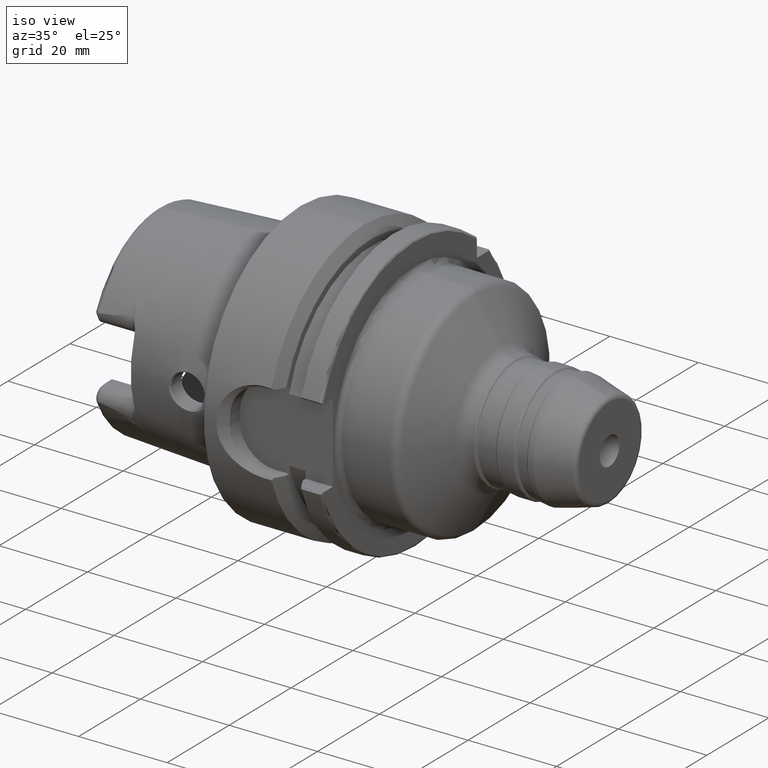
[diagram: clean part render]
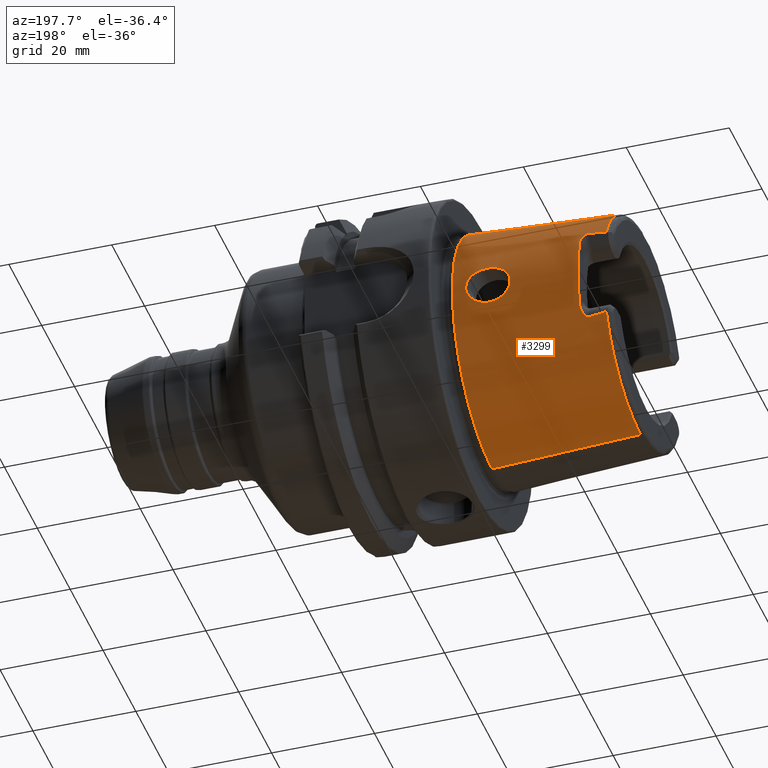
[diagram: tour spotlight — one face highlighted and labeled with its STEP entity id]
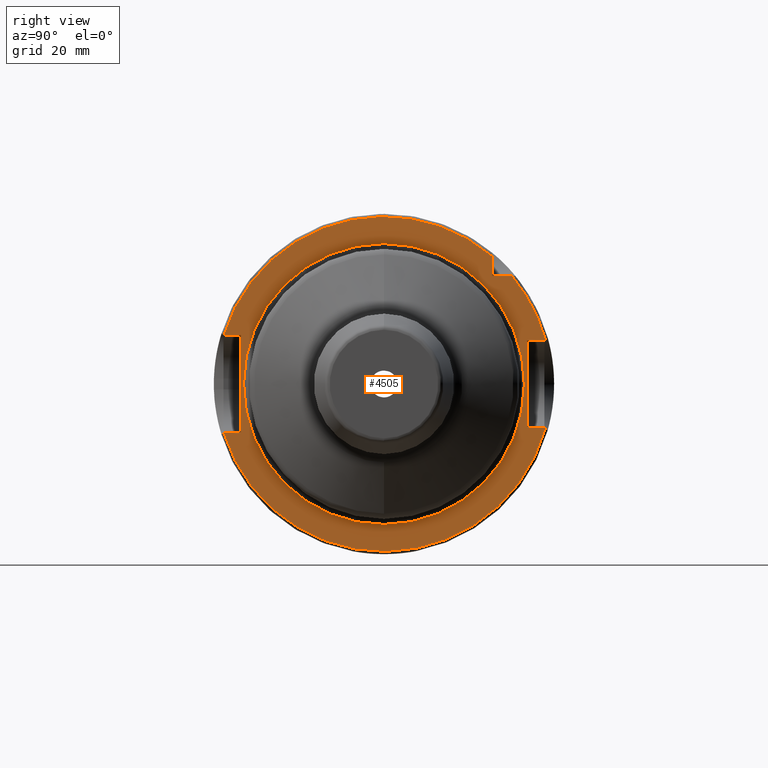
[diagram: tour spotlight — one face highlighted and labeled with its STEP entity id]
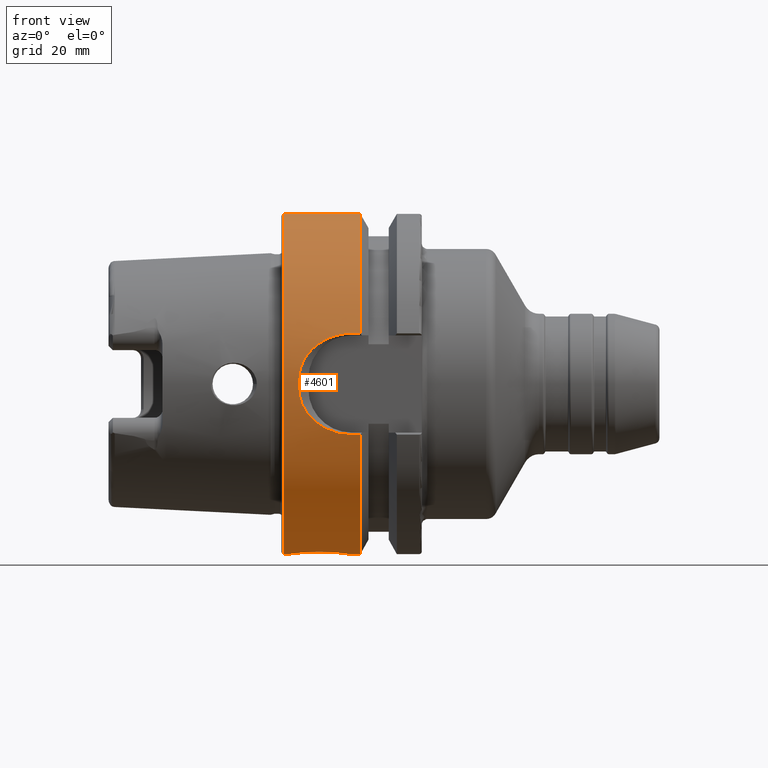
[diagram: tour spotlight — one face highlighted and labeled with its STEP entity id]
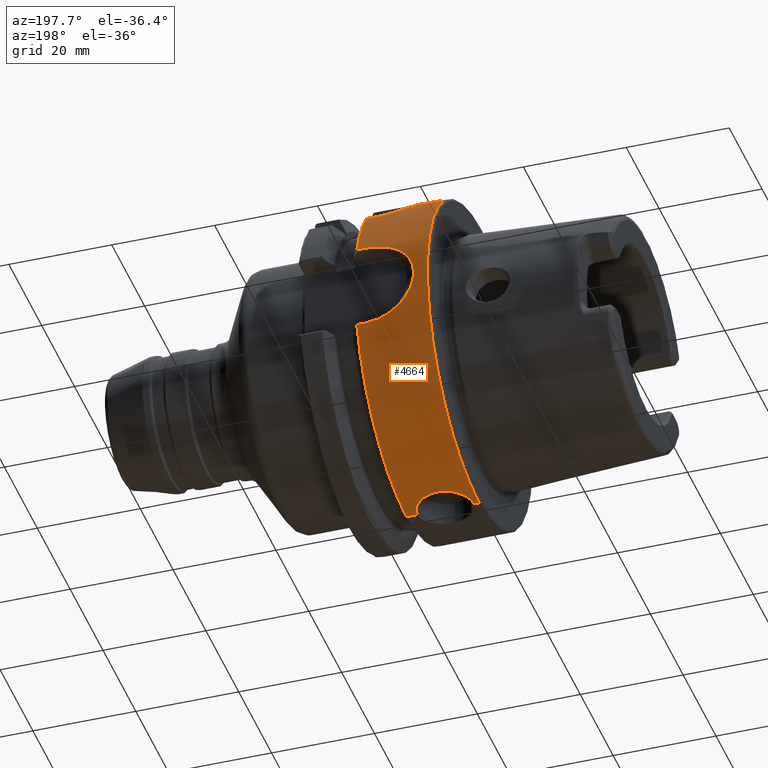
[diagram: tour spotlight — one face highlighted and labeled with its STEP entity id]
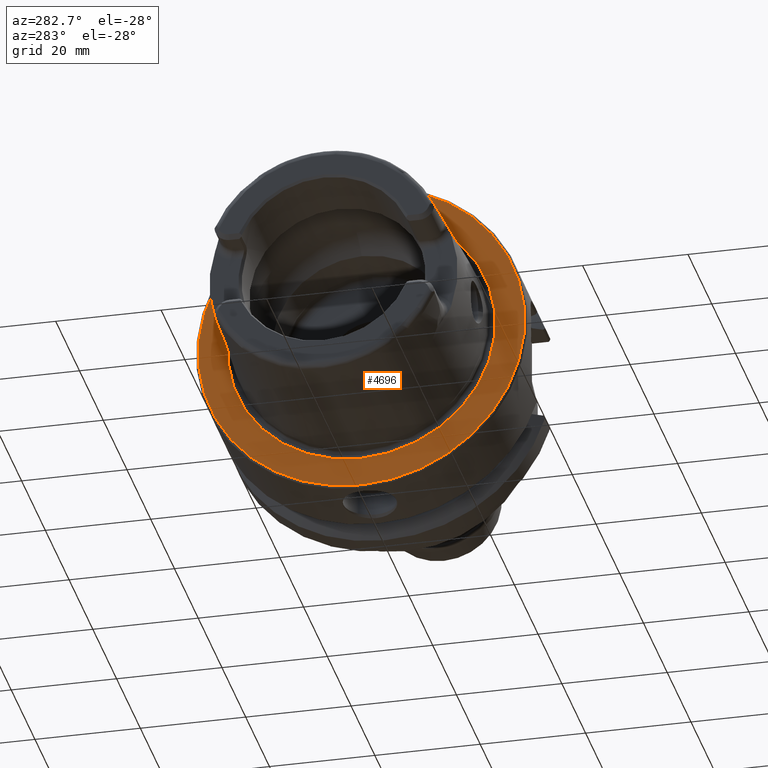
[diagram: tour spotlight — one face highlighted and labeled with its STEP entity id]
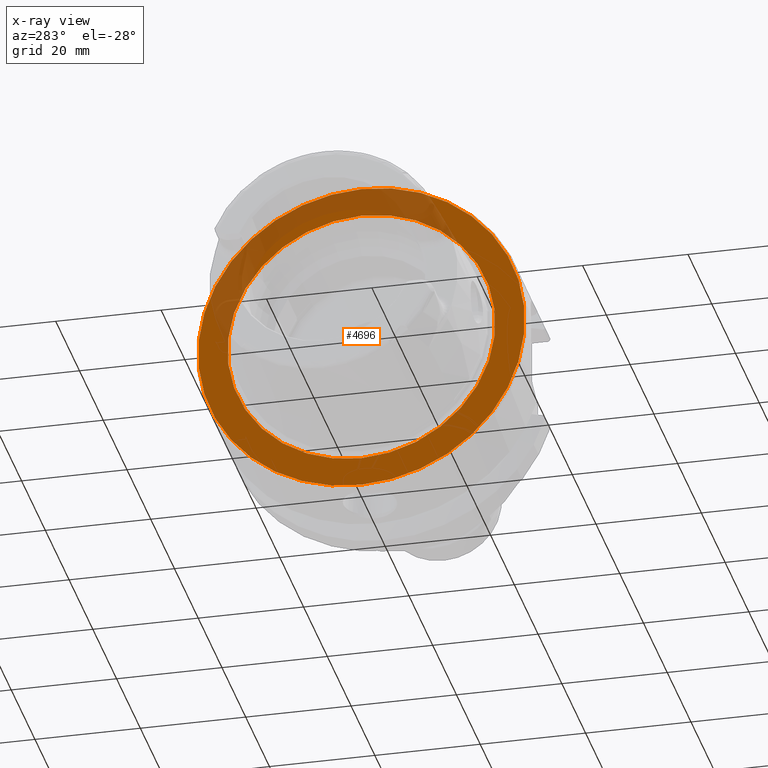
[diagram: x-ray of the same camera — body ghosted, this tour face saturated]
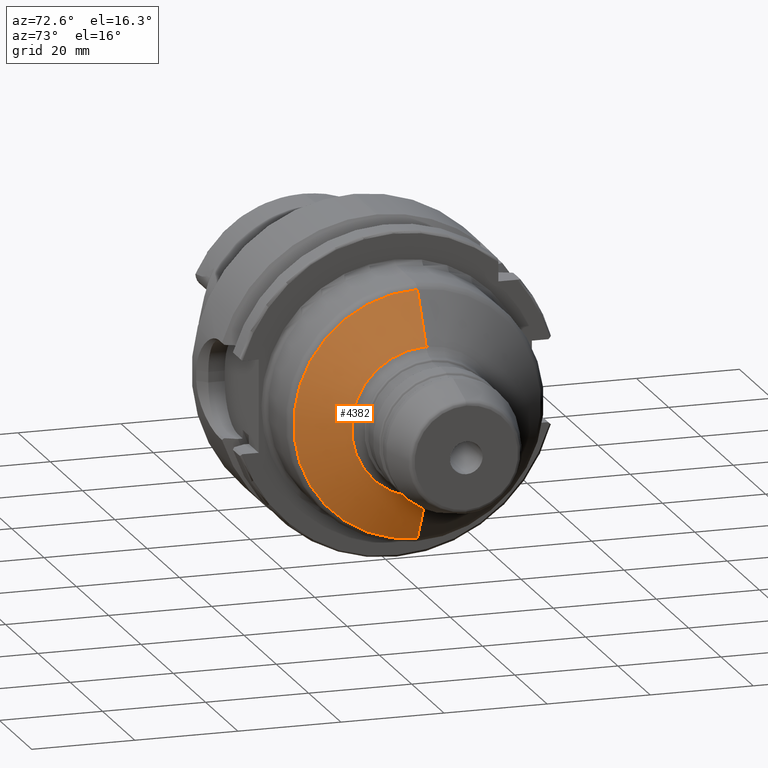
[diagram: tour spotlight — one face highlighted and labeled with its STEP entity id]
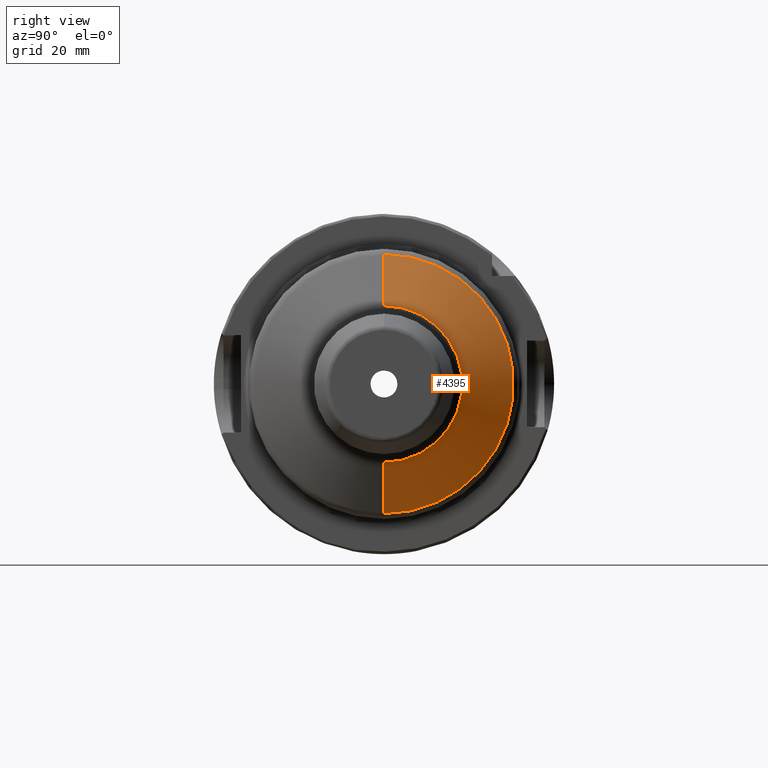
[diagram: tour spotlight — one face highlighted and labeled with its STEP entity id]
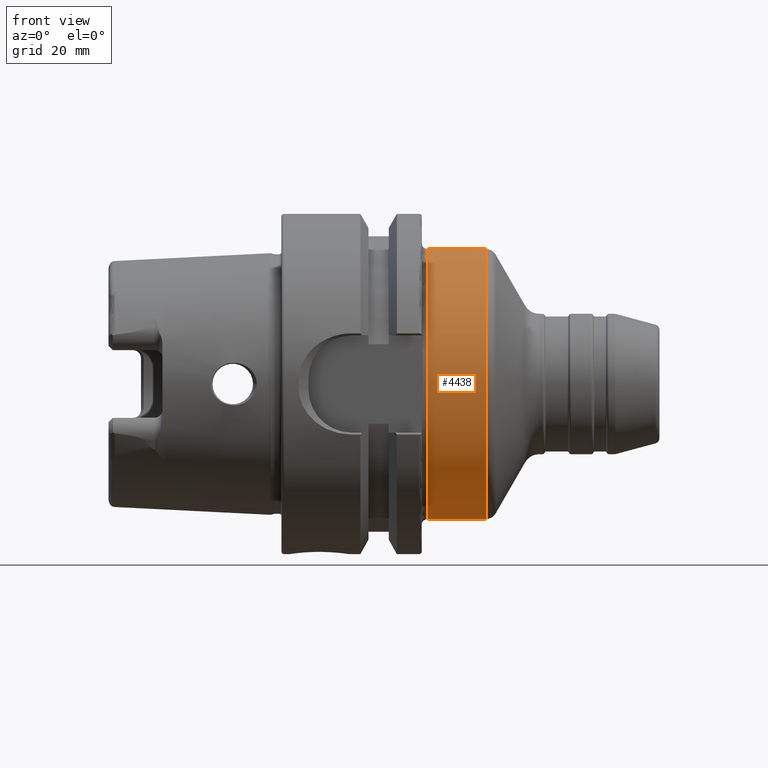
[diagram: tour spotlight — one face highlighted and labeled with its STEP entity id]
A machine part: a face-by-face anatomy tour. The part has 205 B-rep faces; the first image is the clean iso view, then the 8 largest visible faces are spotlighted one at a time (largest first), each with its STEP entity span.

Face 1 — auxiliary view, entity #3299. In plain terms, the highlighted conical surface has half-angle 2.868 deg.
Definition (entity closure, byte-faithful):
#2=CARTESIAN_POINT('',(-3.086004333271E1,0.E0,0.E0));
#3=DIRECTION('',(-1.E0,0.E0,0.E0));
#4=DIRECTION('',(0.E0,9.163649919573E-1,-4.003438540993E-1));
#5=AXIS2_PLACEMENT_3D('',#2,#3,#4);
#7=CARTESIAN_POINT('',(-2.000078966146E0,0.E0,0.E0));
#8=DIRECTION('',(-1.E0,0.E0,0.E0));
#9=DIRECTION('',(0.E0,0.E0,1.E0));
#10=AXIS2_PLACEMENT_3D('',#7,#8,#9);
#12=CARTESIAN_POINT('',(-3.086004333271E1,0.E0,0.E0));
#13=DIRECTION('',(-1.E0,0.E0,0.E0));
#14=DIRECTION('',(0.E0,0.E0,1.E0));
#15=AXIS2_PLACEMENT_3D('',#12,#13,#14);
#17=CARTESIAN_POINT('',(-3.086004333271E1,2.086981840766E1,9.117659021249E0));
#18=CARTESIAN_POINT('',(-3.053477016229E1,2.087026407252E1,9.157343468693E0));
#19=CARTESIAN_POINT('',(-2.990731725920E1,2.086951854295E1,9.237138009720E0));
#20=CARTESIAN_POINT('',(-2.903749175968E1,2.086333964170E1,9.358087934639E0));
#21=CARTESIAN_POINT('',(-2.823306039663E1,2.085177035668E1,9.481640423811E0));
#22=CARTESIAN_POINT('',(-2.773735868303E1,2.083999307163E1,9.567019157167E0));
#23=CARTESIAN_POINT('',(-2.75E1,2.083289994314E1,9.610781850025E0));
#25=CARTESIAN_POINT('',(-3.086004333271E1,2.086981840766E1,-9.117659021249E0));
#26=CARTESIAN_POINT('',(-3.053477016229E1,2.087026407252E1,-9.157343468693E0));
#27=CARTESIAN_POINT('',(-2.990731725920E1,2.086951854295E1,-9.237138009720E0));
#28=CARTESIAN_POINT('',(-2.903749175968E1,2.086333964170E1,-9.358087934639E0));
#29=CARTESIAN_POINT('',(-2.823306039663E1,2.085177035668E1,-9.481640423811E0));
#30=CARTESIAN_POINT('',(-2.773735868303E1,2.083999307163E1,-9.567019157167E0));
#31=CARTESIAN_POINT('',(-2.75E1,2.083289994314E1,-9.610781850025E0));
#33=CARTESIAN_POINT('',(-1.304439190524E1,2.366711362744E1,0.E0));
#34=CARTESIAN_POINT('',(-1.304439190524E1,2.366711362744E1,-2.692296203512E-1));
#35=CARTESIAN_POINT('',(-1.298596588633E1,2.366095548437E1,-7.915478808268E-1));
#36=CARTESIAN_POINT('',(-1.273593529021E1,2.363615494345E1,-1.538491121410E0));
#37=CARTESIAN_POINT('',(-1.234085581199E1,2.360161826823E1,-2.213541098239E0));
#38=CARTESIAN_POINT('',(-1.181419542757E1,2.356442533815E1,-2.805250832799E0));
#39=CARTESIAN_POINT('',(-1.117137997799E1,2.353291472613E1,-3.293080560877E0));
#40=CARTESIAN_POINT('',(-1.044411763446E1,2.351584278645E1,-3.653416998785E0));
#41=CARTESIAN_POINT('',(-9.665961713705E0,2.351947741575E1,-3.874611692795E0));
#42=CARTESIAN_POINT('',(-8.868249773196E0,2.354653765362E1,-3.954597009881E0));
#43=CARTESIAN_POINT('',(-8.066538054402E0,2.359739017255E1,-3.894486132971E0));
#44=CARTESIAN_POINT('',(-7.282895667530E0,2.366966238930E1,-3.694792672991E0));
#45=CARTESIAN_POINT('',(-6.526798753436E0,2.376050761714E1,-3.345491144455E0));
#46=CARTESIAN_POINT('',(-5.863814319433E0,2.385701628222E1,-2.868853306938E0));
#47=CARTESIAN_POINT('',(-5.312865344565E0,2.394874241525E1,-2.282242940895E0));
#48=CARTESIAN_POINT('',(-4.894562356430E0,2.402528280422E1,-1.608353345469E0));
#49=CARTESIAN_POINT('',(-4.618382192889E0,2.407904412959E1,-8.401112834544E-1));
#50=CARTESIAN_POINT('',(-4.550876813471E0,2.409262908457E1,-2.877835390342E-1));
#51=CARTESIAN_POINT('',(-4.550876813471E0,2.409262908457E1,0.E0));
#53=CARTESIAN_POINT('',(-4.550876813471E0,2.409262908457E1,0.E0));
#54=CARTESIAN_POINT('',(-4.550876813471E0,2.409262908457E1,2.859611557422E-1));
#55=CARTESIAN_POINT('',(-4.617596309412E0,2.407920413971E1,8.352613928779E-1));
#56=CARTESIAN_POINT('',(-4.890694973026E0,2.402602347294E1,1.599880277375E0));
#57=CARTESIAN_POINT('',(-5.306466792903E0,2.394987071124E1,2.273906799261E0));
#58=CARTESIAN_POINT('',(-5.856510230644E0,2.385815053501E1,2.862665496108E0));
#59=CARTESIAN_POINT('',(-6.521241332787E0,2.376122989035E1,3.342466827978E0));
#60=CARTESIAN_POINT('',(-7.278646414858E0,2.367010677752E1,3.693348295885E0));
#61=CARTESIAN_POINT('',(-8.062694821519E0,2.359768581097E1,3.893886174943E0));
#62=CARTESIAN_POINT('',(-8.864889034770E0,2.354669857096E1,3.954654604967E0));
#63=CARTESIAN_POINT('',(-9.662752662742E0,2.351953711749E1,3.875232791745E0));
#64=CARTESIAN_POINT('',(-1.044126794827E1,2.351581579089E1,3.654504198045E0));
#65=CARTESIAN_POINT('',(-1.116829063931E1,2.353280579750E1,3.294940241881E0));
#66=CARTESIAN_POINT('',(-1.181105545196E1,2.356423840462E1,2.808070161338E0));
#67=CARTESIAN_POINT('',(-1.233792159236E1,2.360138355943E1,2.217544614980E0));
#68=CARTESIAN_POINT('',(-1.273424784845E1,2.363599247778E1,1.542402709130E0));
#69=CARTESIAN_POINT('',(-1.298554429293E1,2.366091077517E1,7.941137450600E-1));
#70=CARTESIAN_POINT('',(-1.304439190524E1,2.366711362744E1,2.702086010916E-1));
#71=CARTESIAN_POINT('',(-1.304439190524E1,2.366711362744E1,0.E0));
#144=CARTESIAN_POINT('',(-2.75E1,2.083289994314E1,-9.610781850025E0));
#145=CARTESIAN_POINT('',(-2.743975062531E1,2.083109947580E1,-9.621890248698E0));
#146=CARTESIAN_POINT('',(-2.731974848713E1,2.083872619074E1,-9.619737940193E0));
#147=CARTESIAN_POINT('',(-2.713788283439E1,2.088499706769E1,-9.541042090458E0));
#148=CARTESIAN_POINT('',(-2.696734572208E1,2.095414112914E1,-9.409321527965E0));
#149=CARTESIAN_POINT('',(-2.680749153758E1,2.103583876480E1,-9.245355378728E0));
#150=CARTESIAN_POINT('',(-2.665257735252E1,2.112843537783E1,-9.051716021862E0));
#151=CARTESIAN_POINT('',(-2.650302698832E1,2.123047210424E1,-8.829512386182E0));
#152=CARTESIAN_POINT('',(-2.636248241751E1,2.133984318010E1,-8.581008391494E0));
#153=CARTESIAN_POINT('',(-2.623108108915E1,2.145913591165E1,-8.296954135832E0));
#154=CARTESIAN_POINT('',(-2.611489180659E1,2.158976731555E1,-7.968405102356E0));
#155=CARTESIAN_POINT('',(-2.602652288189E1,2.173158022596E1,-7.587530024420E0));
#156=CARTESIAN_POINT('',(-2.6E1,2.183164499938E1,-7.296342131266E0));
#157=CARTESIAN_POINT('',(-2.6E1,2.188224159781E1,-7.141305064401E0));
#173=CARTESIAN_POINT('',(-2.6E1,0.E0,0.E0));
#174=DIRECTION('',(1.E0,0.E0,0.E0));
#175=DIRECTION('',(0.E0,9.506556522061E-1,-3.102480151887E-1));
#176=AXIS2_PLACEMENT_3D('',#173,#174,#175);
#1412=DIRECTION('',(-9.987474310439E-1,-1.043943046318E-10,-5.003567710383E-2));
#1413=VECTOR('',#1412,2.889623723507E1);
#1414=CARTESIAN_POINT('',(-2.000000627352E0,3.013169918385E-9,
2.422041252602E1));
#1415=LINE('',#1414,#1413);
#1421=DIRECTION('',(-9.987474310439E-1,1.043955103514E-10,5.003567710383E-2));
#1422=VECTOR('',#1421,2.889623723507E1);
#1423=CARTESIAN_POINT('',(-2.000000627352E0,-3.013172538588E-9,
-2.422041252602E1));
#1424=LINE('',#1423,#1422);
#1580=CARTESIAN_POINT('',(-2.6E1,2.188224159781E1,7.141305064400E0));
#1581=CARTESIAN_POINT('',(-2.6E1,2.183974716074E1,7.271515653360E0));
#1582=CARTESIAN_POINT('',(-2.601871282871E1,2.175468164903E1,7.521324142367E0));
#1583=CARTESIAN_POINT('',(-2.608831272694E1,2.162788937119E1,7.867819964950E0));
#1584=CARTESIAN_POINT('',(-2.618560132166E1,2.150728532315E1,8.177555427085E0));
#1585=CARTESIAN_POINT('',(-2.630091098865E1,2.139363544444E1,8.454351951900E0));
#1586=CARTESIAN_POINT('',(-2.642777532615E1,2.128749113051E1,8.701079139516E0));
#1587=CARTESIAN_POINT('',(-2.656205230822E1,2.118893349758E1,8.920855574258E0));
#1588=CARTESIAN_POINT('',(-2.670233126283E1,2.109762227452E1,9.116811046229E0));
#1589=CARTESIAN_POINT('',(-2.684756686438E1,2.101419232942E1,9.289367907590E0));
#1590=CARTESIAN_POINT('',(-2.700261207520E1,2.093857757737E1,9.439508455813E0));
#1591=CARTESIAN_POINT('',(-2.716024259459E1,2.087834082786E1,9.552833408787E0));
#1592=CARTESIAN_POINT('',(-2.733041362146E1,2.083774391445E1,9.620584457154E0));
#1593=CARTESIAN_POINT('',(-2.744319606554E1,2.083120243791E1,9.621255000217E0));
#1594=CARTESIAN_POINT('',(-2.75E1,2.083289994314E1,9.610781850025E0));
#2787=CARTESIAN_POINT('',(-2.000078966146E0,0.E0,-2.422042115892E1));
#2788=CARTESIAN_POINT('',(-2.000078966146E0,0.E0,2.422042115892E1));
#2789=VERTEX_POINT('',#2787);
#2790=VERTEX_POINT('',#2788);
#2932=CARTESIAN_POINT('',(-2.6E1,2.188224159781E1,-7.141305064400E0));
#2934=VERTEX_POINT('',#2932);
#2936=CARTESIAN_POINT('',(-2.75E1,2.083289994314E1,-9.610781850025E0));
#2938=VERTEX_POINT('',#2936);
#2940=CARTESIAN_POINT('',(-2.75E1,2.083289994314E1,9.610781850025E0));
#2942=VERTEX_POINT('',#2940);
#2944=CARTESIAN_POINT('',(-2.6E1,2.188224159781E1,7.141305064400E0));
#2946=VERTEX_POINT('',#2944);
#2962=CARTESIAN_POINT('',(-3.086004333271E1,0.E0,-2.277456973022E1));
#2964=VERTEX_POINT('',#2962);
#2966=CARTESIAN_POINT('',(-3.086004333271E1,2.086981840766E1,
-9.117659021249E0));
#2967=VERTEX_POINT('',#2966);
#2968=CARTESIAN_POINT('',(-3.086004333271E1,0.E0,2.277456973022E1));
#2969=CARTESIAN_POINT('',(-3.086004333271E1,2.086981840766E1,9.117659021249E0));
#2970=VERTEX_POINT('',#2968);
#2971=VERTEX_POINT('',#2969);
#3050=VERTEX_POINT('',#33);
#3051=VERTEX_POINT('',#51);
#3266=CARTESIAN_POINT('',(-1.643002229390E1,0.E0,0.E0));
#3267=DIRECTION('',(1.E0,0.E0,0.E0));
#3268=DIRECTION('',(0.E0,0.E0,1.E0));
#3269=AXIS2_PLACEMENT_3D('',#3266,#3267,#3268);
#3270=CONICAL_SURFACE('',#3269,2.349749739118E1,2.86805556E0);
#3272=ORIENTED_EDGE('',*,*,#3271,.T.);
#3274=ORIENTED_EDGE('',*,*,#3273,.F.);
#3276=ORIENTED_EDGE('',*,*,#3275,.F.);
#3278=ORIENTED_EDGE('',*,*,#3277,.T.);
#3280=ORIENTED_EDGE('',*,*,#3279,.T.);
#3282=ORIENTED_EDGE('',*,*,#3281,.T.);
#3284=ORIENTED_EDGE('',*,*,#3283,.F.);
#3286=ORIENTED_EDGE('',*,*,#3285,.F.);
#3288=ORIENTED_EDGE('',*,*,#3287,.F.);
#3290=ORIENTED_EDGE('',*,*,#3289,.F.);
#3291=EDGE_LOOP('',(#3272,#3274,#3276,#3278,#3280,#3282,#3284,#3286,#3288,
#3290));
#3292=FACE_OUTER_BOUND('',#3291,.F.);
#3294=ORIENTED_EDGE('',*,*,#3293,.F.);
#3296=ORIENTED_EDGE('',*,*,#3295,.F.);
#3297=EDGE_LOOP('',(#3294,#3296));
#3298=FACE_BOUND('',#3297,.F.);
#3299=ADVANCED_FACE('',(#3292,#3298),#3270,.T.);
#6=CIRCLE('',#5,2.277456973022E1);
#11=CIRCLE('',#10,2.422042115892E1);
#16=CIRCLE('',#15,2.277456973022E1);
#24=B_SPLINE_CURVE_WITH_KNOTS('',3,(#17,#18,#19,#20,#21,#22,#23),.UNSPECIFIED.,
.F.,.F.,(4,1,1,1,4),(0.E0,2.5E-1,5.E-1,7.5E-1,1.E0),.UNSPECIFIED.);
#32=B_SPLINE_CURVE_WITH_KNOTS('',3,(#25,#26,#27,#28,#29,#30,#31),.UNSPECIFIED.,
.F.,.F.,(4,1,1,1,4),(0.E0,2.5E-1,5.E-1,7.5E-1,1.E0),.UNSPECIFIED.);
#52=B_SPLINE_CURVE_WITH_KNOTS('',3,(#33,#34,#35,#36,#37,#38,#39,#40,#41,#42,#43,
#44,#45,#46,#47,#48,#49,#50,#51),.UNSPECIFIED.,.F.,.F.,(4,1,1,1,1,1,1,1,1,1,1,1,
1,1,1,1,4),(0.E0,6.25E-2,1.25E-1,1.875E-1,2.5E-1,3.125E-1,3.75E-1,4.375E-1,
5.E-1,5.625E-1,6.25E-1,6.875E-1,7.5E-1,8.125E-1,8.75E-1,9.375E-1,1.E0),
.UNSPECIFIED.);
#72=B_SPLINE_CURVE_WITH_KNOTS('',3,(#53,#54,#55,#56,#57,#58,#59,#60,#61,#62,#63,
#64,#65,#66,#67,#68,#69,#70,#71),.UNSPECIFIED.,.F.,.F.,(4,1,1,1,1,1,1,1,1,1,1,1,
1,1,1,1,4),(0.E0,6.25E-2,1.25E-1,1.875E-1,2.5E-1,3.125E-1,3.75E-1,4.375E-1,
5.E-1,5.625E-1,6.25E-1,6.875E-1,7.5E-1,8.125E-1,8.75E-1,9.375E-1,1.E0),
.UNSPECIFIED.);
#158=B_SPLINE_CURVE_WITH_KNOTS('',3,(#144,#145,#146,#147,#148,#149,#150,#151,
#152,#153,#154,#155,#156,#157),.UNSPECIFIED.,.F.,.F.,(4,1,1,1,1,1,1,1,1,1,1,4),(
0.E0,9.090909090909E-2,1.818181818182E-1,2.727272727273E-1,3.636363636364E-1,
4.545454545455E-1,5.454545454545E-1,6.363636363636E-1,7.272727272727E-1,
8.181818181818E-1,9.090909090909E-1,1.E0),.UNSPECIFIED.);
#177=CIRCLE('',#176,2.301805237998E1);
#1595=B_SPLINE_CURVE_WITH_KNOTS('',3,(#1580,#1581,#1582,#1583,#1584,#1585,#1586,
#1587,#1588,#1589,#1590,#1591,#1592,#1593,#1594),.UNSPECIFIED.,.F.,.F.,(4,1,1,1,
1,1,1,1,1,1,1,1,4),(0.E0,8.333333333333E-2,1.666666666667E-1,2.5E-1,
3.333333333333E-1,4.166666666667E-1,5.E-1,5.833333333333E-1,6.666666666667E-1,
7.5E-1,8.333333333333E-1,9.166666666667E-1,1.E0),.UNSPECIFIED.);
#3271=EDGE_CURVE('',#2967,#2964,#6,.T.);
#3273=EDGE_CURVE('',#2789,#2964,#1424,.T.);
#3275=EDGE_CURVE('',#2790,#2789,#11,.T.);
#3277=EDGE_CURVE('',#2790,#2970,#1415,.T.);
#3279=EDGE_CURVE('',#2970,#2971,#16,.T.);
#3281=EDGE_CURVE('',#2971,#2942,#24,.T.);
#3283=EDGE_CURVE('',#2946,#2942,#1595,.T.);
#3285=EDGE_CURVE('',#2934,#2946,#177,.T.);
#3287=EDGE_CURVE('',#2938,#2934,#158,.T.);
#3289=EDGE_CURVE('',#2967,#2938,#32,.T.);
#3293=EDGE_CURVE('',#3050,#3051,#52,.T.);
#3295=EDGE_CURVE('',#3051,#3050,#72,.T.);

Face 2 — right view, entity #4505. In plain terms, the highlighted planar face has unit normal (1, 0, 0).
Definition (entity closure, byte-faithful):
#959=DIRECTION('',(0.E0,1.E0,0.E0));
#960=VECTOR('',#959,3.164793948383E0);
#961=CARTESIAN_POINT('',(2.6E1,-2.966479394838E1,-9.E0));
#962=LINE('',#961,#960);
#963=DIRECTION('',(0.E0,0.E0,1.E0));
#964=VECTOR('',#963,1.8E1);
#965=CARTESIAN_POINT('',(2.6E1,-2.65E1,-9.E0));
#966=LINE('',#965,#964);
#967=DIRECTION('',(0.E0,1.E0,0.E0));
#968=VECTOR('',#967,3.164793948383E0);
#969=CARTESIAN_POINT('',(2.6E1,-2.966479394838E1,9.E0));
#970=LINE('',#969,#968);
#971=DIRECTION('',(0.E0,0.E0,-1.E0));
#972=VECTOR('',#971,3.685438564654E0);
#973=CARTESIAN_POINT('',(2.6E1,2.E1,2.368543856465E1));
#974=LINE('',#973,#972);
#975=DIRECTION('',(0.E0,-1.E0,0.E0));
#976=VECTOR('',#975,3.685438564654E0);
#977=CARTESIAN_POINT('',(2.6E1,2.368543856465E1,2.E1));
#978=LINE('',#977,#976);
#979=DIRECTION('',(0.E0,-7.071067811866E-1,-7.071067811865E-1));
#980=VECTOR('',#979,2.782025045905E-1);
#981=CARTESIAN_POINT('',(2.6E1,2.989671887754E1,8.196718877539E0));
#982=LINE('',#981,#980);
#983=DIRECTION('',(0.E0,-1.E0,0.E0));
#984=VECTOR('',#983,3.2E0);
#985=CARTESIAN_POINT('',(2.6E1,2.97E1,8.E0));
#986=LINE('',#985,#984);
#987=DIRECTION('',(0.E0,0.E0,1.E0));
#988=VECTOR('',#987,1.6E1);
#989=CARTESIAN_POINT('',(2.6E1,2.65E1,-8.E0));
#990=LINE('',#989,#988);
#991=DIRECTION('',(0.E0,-1.E0,0.E0));
#992=VECTOR('',#991,3.2E0);
#993=CARTESIAN_POINT('',(2.6E1,2.97E1,-8.E0));
#994=LINE('',#993,#992);
#995=DIRECTION('',(0.E0,-7.071067811865E-1,7.071067811865E-1));
#996=VECTOR('',#995,2.782025045903E-1);
#997=CARTESIAN_POINT('',(2.6E1,2.989671887754E1,-8.196718877539E0));
#998=LINE('',#997,#996);
#999=CARTESIAN_POINT('',(2.6E1,0.E0,0.E0));
#1000=DIRECTION('',(1.E0,0.E0,0.E0));
#1001=DIRECTION('',(0.E0,0.E0,-1.E0));
#1002=AXIS2_PLACEMENT_3D('',#999,#1000,#1001);
#1004=CARTESIAN_POINT('',(2.6E1,0.E0,0.E0));
#1005=DIRECTION('',(1.E0,0.E0,0.E0));
#1006=DIRECTION('',(0.E0,0.E0,1.E0));
#1007=AXIS2_PLACEMENT_3D('',#1004,#1005,#1006);
#1014=CARTESIAN_POINT('',(2.6E1,0.E0,0.E0));
#1015=DIRECTION('',(1.E0,0.E0,0.E0));
#1016=DIRECTION('',(0.E0,-9.569288370446E-1,-2.903225806452E-1));
#1017=AXIS2_PLACEMENT_3D('',#1014,#1015,#1016);
#1139=CARTESIAN_POINT('',(2.6E1,2.989671887754E1,-8.196718877539E0));
#2251=CARTESIAN_POINT('',(2.6E1,-2.966479394838E1,9.E0));
#2386=CARTESIAN_POINT('',(2.6E1,-2.966479394838E1,-9.E0));
#2579=CARTESIAN_POINT('',(2.6E1,2.989671887754E1,8.196718877539E0));
#2598=CARTESIAN_POINT('',(2.6E1,0.E0,0.E0));
#2599=DIRECTION('',(1.E0,0.E0,0.E0));
#2600=DIRECTION('',(0.E0,9.644102863722E-1,2.644102863722E-1));
#2601=AXIS2_PLACEMENT_3D('',#2598,#2599,#2600);
#2603=CARTESIAN_POINT('',(2.6E1,2.368543856465E1,2.E1));
#2628=CARTESIAN_POINT('',(2.6E1,2.E1,2.368543856465E1));
#2643=CARTESIAN_POINT('',(2.6E1,0.E0,0.E0));
#2644=DIRECTION('',(1.E0,0.E0,0.E0));
#2645=DIRECTION('',(0.E0,6.451612903226E-1,7.640464053114E-1));
#2646=AXIS2_PLACEMENT_3D('',#2643,#2644,#2645);
#2799=CARTESIAN_POINT('',(2.6E1,2.65E1,-8.E0));
#2800=CARTESIAN_POINT('',(2.6E1,2.65E1,8.E0));
#2801=VERTEX_POINT('',#2799);
#2802=VERTEX_POINT('',#2800);
#2831=CARTESIAN_POINT('',(2.6E1,-2.65E1,-9.E0));
#2832=CARTESIAN_POINT('',(2.6E1,-2.65E1,9.E0));
#2833=VERTEX_POINT('',#2831);
#2834=VERTEX_POINT('',#2832);
#2889=CARTESIAN_POINT('',(2.6E1,2.E1,2.E1));
#2890=VERTEX_POINT('',#2889);
#3102=CARTESIAN_POINT('',(2.6E1,2.97E1,-8.E0));
#3103=VERTEX_POINT('',#3102);
#3104=CARTESIAN_POINT('',(2.6E1,2.97E1,8.E0));
#3105=VERTEX_POINT('',#3104);
#3118=VERTEX_POINT('',#2386);
#3119=VERTEX_POINT('',#1139);
#3122=VERTEX_POINT('',#2579);
#3123=VERTEX_POINT('',#2603);
#3126=VERTEX_POINT('',#2628);
#3127=VERTEX_POINT('',#2251);
#3258=CARTESIAN_POINT('',(2.6E1,0.E0,-2.6E1));
#3259=CARTESIAN_POINT('',(2.6E1,0.E0,2.6E1));
#3260=VERTEX_POINT('',#3258);
#3261=VERTEX_POINT('',#3259);
#4467=CARTESIAN_POINT('',(2.6E1,0.E0,0.E0));
#4468=DIRECTION('',(1.E0,0.E0,0.E0));
#4469=DIRECTION('',(0.E0,0.E0,1.E0));
#4470=AXIS2_PLACEMENT_3D('',#4467,#4468,#4469);
#4471=PLANE('',#4470);
#4473=ORIENTED_EDGE('',*,*,#4472,.F.);
#4475=ORIENTED_EDGE('',*,*,#4474,.T.);
#4477=ORIENTED_EDGE('',*,*,#4476,.T.);
#4479=ORIENTED_EDGE('',*,*,#4478,.F.);
#4481=ORIENTED_EDGE('',*,*,#4480,.F.);
#4483=ORIENTED_EDGE('',*,*,#4482,.T.);
#4485=ORIENTED_EDGE('',*,*,#4484,.F.);
#4487=ORIENTED_EDGE('',*,*,#4486,.F.);
#4489=ORIENTED_EDGE('',*,*,#4488,.T.);
#4491=ORIENTED_EDGE('',*,*,#4490,.T.);
#4493=ORIENTED_EDGE('',*,*,#4492,.F.);
#4495=ORIENTED_EDGE('',*,*,#4494,.F.);
#4497=ORIENTED_EDGE('',*,*,#4496,.F.);
#4498=EDGE_LOOP('',(#4473,#4475,#4477,#4479,#4481,#4483,#4485,#4487,#4489,#4491,
#4493,#4495,#4497));
#4499=FACE_OUTER_BOUND('',#4498,.F.);
#4500=ORIENTED_EDGE('',*,*,#4457,.T.);
#4502=ORIENTED_EDGE('',*,*,#4501,.T.);
#4503=EDGE_LOOP('',(#4500,#4502));
#4504=FACE_BOUND('',#4503,.F.);
#4505=ADVANCED_FACE('',(#4499,#4504),#4471,.T.);
#1003=CIRCLE('',#1002,2.6E1);
#1008=CIRCLE('',#1007,2.6E1);
#1018=CIRCLE('',#1017,3.1E1);
#2602=CIRCLE('',#2601,3.1E1);
#2647=CIRCLE('',#2646,3.1E1);
#4457=EDGE_CURVE('',#3260,#3261,#1003,.T.);
#4472=EDGE_CURVE('',#3118,#3119,#1018,.T.);
#4474=EDGE_CURVE('',#3118,#2833,#962,.T.);
#4476=EDGE_CURVE('',#2833,#2834,#966,.T.);
#4478=EDGE_CURVE('',#3127,#2834,#970,.T.);
#4480=EDGE_CURVE('',#3126,#3127,#2647,.T.);
#4482=EDGE_CURVE('',#3126,#2890,#974,.T.);
#4484=EDGE_CURVE('',#3123,#2890,#978,.T.);
#4486=EDGE_CURVE('',#3122,#3123,#2602,.T.);
#4488=EDGE_CURVE('',#3122,#3105,#982,.T.);
#4490=EDGE_CURVE('',#3105,#2802,#986,.T.);
#4492=EDGE_CURVE('',#2801,#2802,#990,.T.);
#4494=EDGE_CURVE('',#3103,#2801,#994,.T.);
#4496=EDGE_CURVE('',#3119,#3103,#998,.T.);
#4501=EDGE_CURVE('',#3261,#3260,#1008,.T.);

Face 3 — front view, entity #4601. In plain terms, the highlighted cylindrical surface (partial cylindrical patch) has radius 31.5 mm, axis along (1, 0, 0).
Definition (entity closure, byte-faithful):
#1043=CARTESIAN_POINT('',(5.E-1,0.E0,0.E0));
#1044=DIRECTION('',(-1.E0,0.E0,0.E0));
#1045=DIRECTION('',(0.E0,0.E0,-1.E0));
#1046=AXIS2_PLACEMENT_3D('',#1043,#1044,#1045);
#1048=DIRECTION('',(-1.E0,-1.152682623977E-12,0.E0));
#1049=VECTOR('',#1048,1.412250090457E1);
#1050=CARTESIAN_POINT('',(1.462250090457E1,0.E0,3.15E1));
#1051=LINE('',#1050,#1049);
#1052=CARTESIAN_POINT('',(1.462250090457E1,0.E0,0.E0));
#1053=DIRECTION('',(1.E0,0.E0,0.E0));
#1054=DIRECTION('',(0.E0,0.E0,1.E0));
#1055=AXIS2_PLACEMENT_3D('',#1052,#1053,#1054);
#1057=DIRECTION('',(1.E0,0.E0,0.E0));
#1058=VECTOR('',#1057,1.622500904567E0);
#1059=CARTESIAN_POINT('',(1.3E1,-3.007314630073E1,9.373146300730E0));
#1060=LINE('',#1059,#1058);
#1061=CARTESIAN_POINT('',(3.215877017138E0,-3.148412298286E1,1.E0));
#1062=CARTESIAN_POINT('',(3.229667999164E0,-3.147033200084E1,1.434196974159E0));
#1063=CARTESIAN_POINT('',(3.331305148110E0,-3.142562614716E1,2.280557906877E0));
#1064=CARTESIAN_POINT('',(3.689639209254E0,-3.131261894329E1,3.497824814117E0));
#1065=CARTESIAN_POINT('',(4.224387561762E0,-3.116591969202E1,4.617731549331E0));
#1066=CARTESIAN_POINT('',(4.908842568303E0,-3.099748287679E1,5.632070943113E0));
#1067=CARTESIAN_POINT('',(5.712482050064E0,-3.082045350516E1,6.526140660742E0));
#1068=CARTESIAN_POINT('',(6.610248790574E0,-3.064607991101E1,7.296749719208E0));
#1069=CARTESIAN_POINT('',(7.571522800308E0,-3.048524436851E1,7.938452155490E0));
#1070=CARTESIAN_POINT('',(8.586678709411E0,-3.034375148093E1,8.460694722024E0));
#1071=CARTESIAN_POINT('',(9.645764018389E0,-3.022707288446E1,8.866638984176E0));
#1072=CARTESIAN_POINT('',(1.074128466146E1,-3.013966717822E1,9.158034230836E0));
#1073=CARTESIAN_POINT('',(1.186302386205E1,-3.008546433696E1,9.333758812896E0));
#1074=CARTESIAN_POINT('',(1.261911814478E1,-3.007314630073E1,9.373146300730E0));
#1075=CARTESIAN_POINT('',(1.3E1,-3.007314630073E1,9.373146300730E0));
#1077=CARTESIAN_POINT('',(3.215877017138E0,-3.148412298286E1,1.E0));
#1078=CARTESIAN_POINT('',(3.194702323244E0,-3.150529767676E1,
3.333333333333E-1));
#1079=CARTESIAN_POINT('',(3.194702323244E0,-3.150529767676E1,
-3.333333333333E-1));
#1080=CARTESIAN_POINT('',(3.215877017138E0,-3.148412298286E1,-1.E0));
#1082=CARTESIAN_POINT('',(1.3E1,-3.007314630073E1,-9.373146300730E0));
#1083=CARTESIAN_POINT('',(1.261853332120E1,-3.007314630073E1,
-9.373146300730E0));
#1084=CARTESIAN_POINT('',(1.186054965003E1,-3.008548964654E1,
-9.333679878844E0));
#1085=CARTESIAN_POINT('',(1.073214946153E1,-3.014018055062E1,
-9.156365746563E0));
#1086=CARTESIAN_POINT('',(9.631145388051E0,-3.022842683235E1,
-8.862067281056E0));
#1087=CARTESIAN_POINT('',(8.571278418516E0,-3.034570143073E1,
-8.453719776647E0));
#1088=CARTESIAN_POINT('',(7.561968874510E0,-3.048678333923E1,
-7.932465852427E0));
#1089=CARTESIAN_POINT('',(6.609353099417E0,-3.064632014939E1,
-7.295523702098E0));
#1090=CARTESIAN_POINT('',(5.719379577085E0,-3.081907849533E1,
-6.532291860359E0));
#1091=CARTESIAN_POINT('',(4.918592559215E0,-3.099521802093E1,
-5.644324145033E0));
#1092=CARTESIAN_POINT('',(4.231158808814E0,-3.116413549913E1,
-4.629983120332E0));
#1093=CARTESIAN_POINT('',(3.691949597490E0,-3.131190693228E1,
-3.504990575318E0));
#1094=CARTESIAN_POINT('',(3.331145804748E0,-3.142565099898E1,
-2.281032014602E0));
#1095=CARTESIAN_POINT('',(3.229661047521E0,-3.147033895248E1,
-1.433978107804E0));
#1096=CARTESIAN_POINT('',(3.215877017138E0,-3.148412298286E1,-1.E0));
#1098=DIRECTION('',(1.E0,0.E0,0.E0));
#1099=VECTOR('',#1098,1.622500904567E0);
#1100=CARTESIAN_POINT('',(1.3E1,-3.007314630073E1,-9.373146300730E0));
#1101=LINE('',#1100,#1099);
#1102=CARTESIAN_POINT('',(1.462250090457E1,0.E0,0.E0));
#1103=DIRECTION('',(1.E0,0.E0,0.E0));
#1104=DIRECTION('',(0.E0,-9.547030571660E-1,-2.975602000232E-1));
#1105=AXIS2_PLACEMENT_3D('',#1102,#1103,#1104);
#1107=DIRECTION('',(-1.E0,0.E0,0.E0));
#1108=VECTOR('',#1107,2.122500904567E0);
#1109=CARTESIAN_POINT('',(1.462250090457E1,0.E0,-3.15E1));
#1110=LINE('',#1109,#1108);
#1111=CARTESIAN_POINT('',(1.5E0,0.E0,-3.15E1));
#1112=CARTESIAN_POINT('',(1.5E0,-3.588951255127E-1,-3.15E1));
#1113=CARTESIAN_POINT('',(1.581138327990E0,-1.048548521747E0,
-3.148782376809E1));
#1114=CARTESIAN_POINT('',(1.910588073966E0,-2.006564336888E0,
-3.144040908891E1));
#1115=CARTESIAN_POINT('',(2.415944971875E0,-2.861556117510E0,
-3.137324069068E1));
#1116=CARTESIAN_POINT('',(3.093296979582E0,-3.621570072850E0,
-3.129379480836E1));
#1117=CARTESIAN_POINT('',(3.932860337858E0,-4.259632130927E0,
-3.121237817627E1));
#1118=CARTESIAN_POINT('',(4.908163968859E0,-4.738763837594E0,
-3.114229734464E1));
#1119=CARTESIAN_POINT('',(5.940629906439E0,-5.023428099724E0,
-3.109702626598E1));
#1120=CARTESIAN_POINT('',(7.003177692584E0,-5.118459986461E0,
-3.108133735981E1));
#1121=CARTESIAN_POINT('',(8.065102610065E0,-5.022310651440E0,
-3.109720856453E1));
#1122=CARTESIAN_POINT('',(9.095890701222E0,-4.737167472201E0,
-3.114254165967E1));
#1123=CARTESIAN_POINT('',(1.007119715688E1,-4.257247395534E0,
-3.121271241342E1));
#1124=CARTESIAN_POINT('',(1.091189752168E1,-3.616987749219E0,
-3.129434443001E1));
#1125=CARTESIAN_POINT('',(1.158923361556E1,-2.854578399489E0,
-3.137389265772E1));
#1126=CARTESIAN_POINT('',(1.209279314293E1,-1.998956427454E0,
-3.144088492167E1));
#1127=CARTESIAN_POINT('',(1.241973333056E1,-1.043420158419E0,
-3.148795551285E1));
#1128=CARTESIAN_POINT('',(1.25E1,-3.569041729368E-1,-3.15E1));
#1129=CARTESIAN_POINT('',(1.25E1,0.E0,-3.15E1));
#1131=DIRECTION('',(-1.E0,-3.500340280064E-12,0.E0));
#1132=VECTOR('',#1131,1.E0);
#1133=CARTESIAN_POINT('',(1.5E0,0.E0,-3.15E1));
#1134=LINE('',#1133,#1132);
#1153=CARTESIAN_POINT('',(1.25E1,0.E0,-3.15E1));
#1171=CARTESIAN_POINT('',(1.5E0,0.E0,-3.15E1));
#2887=CARTESIAN_POINT('',(1.462250090457E1,0.E0,3.15E1));
#2888=VERTEX_POINT('',#2887);
#3030=VERTEX_POINT('',#1153);
#3031=VERTEX_POINT('',#1171);
#3040=CARTESIAN_POINT('',(1.462250090457E1,0.E0,-3.15E1));
#3041=VERTEX_POINT('',#3040);
#3064=CARTESIAN_POINT('',(1.3E1,-3.007314630073E1,-9.373146300730E0));
#3065=CARTESIAN_POINT('',(1.462250090457E1,-3.007314630073E1,
-9.373146300730E0));
#3066=VERTEX_POINT('',#3064);
#3067=VERTEX_POINT('',#3065);
#3068=VERTEX_POINT('',#1096);
#3069=VERTEX_POINT('',#1077);
#3070=VERTEX_POINT('',#1075);
#3071=CARTESIAN_POINT('',(1.462250090457E1,-3.007314630073E1,9.373146300730E0));
#3072=VERTEX_POINT('',#3071);
#3112=CARTESIAN_POINT('',(5.E-1,0.E0,3.15E1));
#3113=CARTESIAN_POINT('',(5.E-1,0.E0,-3.15E1));
#3114=VERTEX_POINT('',#3112);
#3115=VERTEX_POINT('',#3113);
#4570=CARTESIAN_POINT('',(0.E0,0.E0,0.E0));
#4571=DIRECTION('',(1.E0,0.E0,0.E0));
#4572=DIRECTION('',(0.E0,0.E0,1.E0));
#4573=AXIS2_PLACEMENT_3D('',#4570,#4571,#4572);
#4574=CYLINDRICAL_SURFACE('',#4573,3.15E1);
#4576=ORIENTED_EDGE('',*,*,#4575,.T.);
#4578=ORIENTED_EDGE('',*,*,#4577,.F.);
#4580=ORIENTED_EDGE('',*,*,#4579,.T.);
#4582=ORIENTED_EDGE('',*,*,#4581,.F.);
#4584=ORIENTED_EDGE('',*,*,#4583,.F.);
#4586=ORIENTED_EDGE('',*,*,#4585,.T.);
#4588=ORIENTED_EDGE('',*,*,#4587,.F.);
#4590=ORIENTED_EDGE('',*,*,#4589,.T.);
#4592=ORIENTED_EDGE('',*,*,#4591,.T.);
#4594=ORIENTED_EDGE('',*,*,#4593,.T.);
#4596=ORIENTED_EDGE('',*,*,#4595,.F.);
#4598=ORIENTED_EDGE('',*,*,#4597,.T.);
#4599=EDGE_LOOP('',(#4576,#4578,#4580,#4582,#4584,#4586,#4588,#4590,#4592,#4594,
#4596,#4598));
#4600=FACE_OUTER_BOUND('',#4599,.F.);
#4601=ADVANCED_FACE('',(#4600),#4574,.T.);
#1047=CIRCLE('',#1046,3.15E1);
#1056=CIRCLE('',#1055,3.15E1);
#1076=B_SPLINE_CURVE_WITH_KNOTS('',3,(#1061,#1062,#1063,#1064,#1065,#1066,#1067,
#1068,#1069,#1070,#1071,#1072,#1073,#1074,#1075),.UNSPECIFIED.,.F.,.F.,(4,1,1,1,
1,1,1,1,1,1,1,1,4),(0.E0,8.333333333333E-2,1.666666666667E-1,2.5E-1,
3.333333333333E-1,4.166666666667E-1,5.E-1,5.833333333333E-1,6.666666666667E-1,
7.5E-1,8.333333333333E-1,9.166666666667E-1,1.E0),.UNSPECIFIED.);
#1081=B_SPLINE_CURVE_WITH_KNOTS('',3,(#1077,#1078,#1079,#1080),.UNSPECIFIED.,
.F.,.F.,(4,4),(0.E0,1.E0),.UNSPECIFIED.);
#1097=B_SPLINE_CURVE_WITH_KNOTS('',3,(#1082,#1083,#1084,#1085,#1086,#1087,#1088,
#1089,#1090,#1091,#1092,#1093,#1094,#1095,#1096),.UNSPECIFIED.,.F.,.F.,(4,1,1,1,
1,1,1,1,1,1,1,1,4),(0.E0,8.333333333333E-2,1.666666666667E-1,2.5E-1,
3.333333333333E-1,4.166666666667E-1,5.E-1,5.833333333333E-1,6.666666666667E-1,
7.5E-1,8.333333333333E-1,9.166666666667E-1,1.E0),.UNSPECIFIED.);
#1106=CIRCLE('',#1105,3.15E1);
#1130=B_SPLINE_CURVE_WITH_KNOTS('',3,(#1111,#1112,#1113,#1114,#1115,#1116,#1117,
#1118,#1119,#1120,#1121,#1122,#1123,#1124,#1125,#1126,#1127,#1128,#1129),
.UNSPECIFIED.,.F.,.F.,(4,1,1,1,1,1,1,1,1,1,1,1,1,1,1,1,4),(0.E0,6.25E-2,1.25E-1,
1.875E-1,2.5E-1,3.125E-1,3.75E-1,4.375E-1,5.E-1,5.625E-1,6.25E-1,6.875E-1,
7.5E-1,8.125E-1,8.75E-1,9.375E-1,1.E0),.UNSPECIFIED.);
#4575=EDGE_CURVE('',#3115,#3114,#1047,.T.);
#4577=EDGE_CURVE('',#2888,#3114,#1051,.T.);
#4579=EDGE_CURVE('',#2888,#3072,#1056,.T.);
#4581=EDGE_CURVE('',#3070,#3072,#1060,.T.);
#4583=EDGE_CURVE('',#3069,#3070,#1076,.T.);
#4585=EDGE_CURVE('',#3069,#3068,#1081,.T.);
#4587=EDGE_CURVE('',#3066,#3068,#1097,.T.);
#4589=EDGE_CURVE('',#3066,#3067,#1101,.T.);
#4591=EDGE_CURVE('',#3067,#3041,#1106,.T.);
#4593=EDGE_CURVE('',#3041,#3030,#1110,.T.);
#4595=EDGE_CURVE('',#3031,#3030,#1130,.T.);
#4597=EDGE_CURVE('',#3031,#3115,#1134,.T.);

Face 4 — auxiliary view, entity #4664. In plain terms, the highlighted cylindrical surface (partial cylindrical patch) has radius 31.5 mm, axis along (1, 0, 0).
Definition (entity closure, byte-faithful):
#1048=DIRECTION('',(-1.E0,-1.152682623977E-12,0.E0));
#1049=VECTOR('',#1048,1.412250090457E1);
#1050=CARTESIAN_POINT('',(1.462250090457E1,0.E0,3.15E1));
#1051=LINE('',#1050,#1049);
#1107=DIRECTION('',(-1.E0,0.E0,0.E0));
#1108=VECTOR('',#1107,2.122500904567E0);
#1109=CARTESIAN_POINT('',(1.462250090457E1,0.E0,-3.15E1));
#1110=LINE('',#1109,#1108);
#1131=DIRECTION('',(-1.E0,-3.500340280064E-12,0.E0));
#1132=VECTOR('',#1131,1.E0);
#1133=CARTESIAN_POINT('',(1.5E0,0.E0,-3.15E1));
#1134=LINE('',#1133,#1132);
#1148=CARTESIAN_POINT('',(5.E-1,0.E0,0.E0));
#1149=DIRECTION('',(-1.E0,0.E0,0.E0));
#1150=DIRECTION('',(0.E0,0.E0,1.E0));
#1151=AXIS2_PLACEMENT_3D('',#1148,#1149,#1150);
#1153=CARTESIAN_POINT('',(1.25E1,0.E0,-3.15E1));
#1154=CARTESIAN_POINT('',(1.25E1,3.591179016958E-1,-3.15E1));
#1155=CARTESIAN_POINT('',(1.241877060514E1,1.049176716839E0,-3.148780969961E1));
#1156=CARTESIAN_POINT('',(1.208888151745E1,2.007789554012E0,-3.144033464909E1));
#1157=CARTESIAN_POINT('',(1.158303499725E1,2.863034778919E0,-3.137310892711E1));
#1158=CARTESIAN_POINT('',(1.090471174494E1,3.623449915998E0,-3.129357789396E1));
#1159=CARTESIAN_POINT('',(1.006459553458E1,4.261252464667E0,-3.121215533395E1));
#1160=CARTESIAN_POINT('',(9.088026015445E0,4.740243014212E0,-3.114207085875E1));
#1161=CARTESIAN_POINT('',(8.055144265708E0,5.024239826024E0,-3.109689332850E1));
#1162=CARTESIAN_POINT('',(6.991255526220E0,5.118492193282E0,-3.108133183436E1));
#1163=CARTESIAN_POINT('',(5.929304176130E0,5.021338939589E0,-3.109736870211E1));
#1164=CARTESIAN_POINT('',(4.897654838810E0,4.734729497616E0,-3.114291627253E1));
#1165=CARTESIAN_POINT('',(3.923322314250E0,4.253904907756E0,-3.121317796639E1));
#1166=CARTESIAN_POINT('',(3.081999010349E0,3.611475324829E0,-3.129499592086E1));
#1167=CARTESIAN_POINT('',(2.405524185626E0,2.847462453288E0,-3.137455446046E1));
#1168=CARTESIAN_POINT('',(1.903178736620E0,1.990202842849E0,-3.144144823364E1));
#1169=CARTESIAN_POINT('',(1.578888425808E0,1.035924841317E0,-3.148816306394E1));
#1170=CARTESIAN_POINT('',(1.5E0,3.538898695661E-1,-3.15E1));
#1171=CARTESIAN_POINT('',(1.5E0,0.E0,-3.15E1));
#1173=CARTESIAN_POINT('',(1.462250090457E1,0.E0,0.E0));
#1174=DIRECTION('',(1.E0,0.E0,0.E0));
#1175=DIRECTION('',(0.E0,0.E0,-1.E0));
#1176=AXIS2_PLACEMENT_3D('',#1173,#1174,#1175);
#1178=DIRECTION('',(1.E0,0.E0,0.E0));
#1179=VECTOR('',#1178,1.622500904567E0);
#1180=CARTESIAN_POINT('',(1.3E1,3.030257052423E1,-8.602570524226E0));
#1181=LINE('',#1180,#1179);
#1182=CARTESIAN_POINT('',(1.3E1,3.030257052423E1,-8.602570524226E0));
#1183=CARTESIAN_POINT('',(1.235541835287E1,3.030257052423E1,-8.602570524226E0));
#1184=CARTESIAN_POINT('',(1.109372968304E1,3.033423153458E1,-8.492196080456E0));
#1185=CARTESIAN_POINT('',(9.248264611222E0,3.046933517118E1,-8.000909647176E0));
#1186=CARTESIAN_POINT('',(7.555884268441E0,3.066964465669E1,-7.205952655409E0));
#1187=CARTESIAN_POINT('',(6.088763746981E0,3.090017764345E1,-6.155508171550E0));
#1188=CARTESIAN_POINT('',(4.907613818030E0,3.112281076593E1,-4.919449967846E0));
#1189=CARTESIAN_POINT('',(4.035296228860E0,3.130752418742E1,-3.569140413675E0));
#1190=CARTESIAN_POINT('',(3.467126615443E0,3.143679507039E1,-2.158791178254E0));
#1191=CARTESIAN_POINT('',(3.188348549717E0,3.150274417315E1,
-7.219689524248E-1));
#1192=CARTESIAN_POINT('',(3.188351309952E0,3.150274350794E1,7.219960352426E-1));
#1193=CARTESIAN_POINT('',(3.467133324851E0,3.143679352027E1,2.158810680109E0));
#1194=CARTESIAN_POINT('',(4.035299491244E0,3.130752347964E1,3.569145798460E0));
#1195=CARTESIAN_POINT('',(4.907619317801E0,3.112280964165E1,4.919457341111E0));
#1196=CARTESIAN_POINT('',(6.088770538561E0,3.090017648968E1,6.155513669787E0));
#1197=CARTESIAN_POINT('',(7.555887404237E0,3.066964426780E1,7.205954206590E0));
#1198=CARTESIAN_POINT('',(9.248266760131E0,3.046933495101E1,8.000910488809E0));
#1199=CARTESIAN_POINT('',(1.109373293521E1,3.033423138205E1,8.492196614850E0));
#1200=CARTESIAN_POINT('',(1.235541965801E1,3.030257052423E1,8.602570524226E0));
#1201=CARTESIAN_POINT('',(1.3E1,3.030257052423E1,8.602570524226E0));
#1203=DIRECTION('',(1.E0,0.E0,0.E0));
#1204=VECTOR('',#1203,1.622500904567E0);
#1205=CARTESIAN_POINT('',(1.3E1,3.030257052423E1,8.602570524226E0));
#1206=LINE('',#1205,#1204);
#1207=CARTESIAN_POINT('',(1.462250090457E1,0.E0,0.E0));
#1208=DIRECTION('',(1.E0,0.E0,0.E0));
#1209=DIRECTION('',(0.E0,9.619863658485E-1,2.730974769596E-1));
#1210=AXIS2_PLACEMENT_3D('',#1207,#1208,#1209);
#1212=DIRECTION('',(1.E0,0.E0,0.E0));
#1213=VECTOR('',#1212,1.622500904567E0);
#1214=CARTESIAN_POINT('',(1.3E1,2.433618704728E1,2.E1));
#1215=LINE('',#1214,#1213);
#1216=CARTESIAN_POINT('',(5.888286096344E0,2.E1,2.433618704728E1));
#1217=CARTESIAN_POINT('',(5.979841110901E0,2.021624479285E1,2.415847244274E1));
#1218=CARTESIAN_POINT('',(6.178964055433E0,2.063505528873E1,2.380463264103E1));
#1219=CARTESIAN_POINT('',(6.529290349012E0,2.122336114799E1,2.328123619400E1));
#1220=CARTESIAN_POINT('',(6.934185786704E0,2.177041926319E1,2.277004743860E1));
#1221=CARTESIAN_POINT('',(7.395470581921E0,2.227363444044E1,2.227755184076E1));
#1222=CARTESIAN_POINT('',(7.915511267172E0,2.273117164906E1,2.180996325233E1));
#1223=CARTESIAN_POINT('',(8.494651142790E0,2.313957745525E1,2.137559509570E1));
#1224=CARTESIAN_POINT('',(9.133373456560E0,2.349590004479E1,2.098269866103E1));
#1225=CARTESIAN_POINT('',(9.827602999986E0,2.379530983774E1,2.064193255373E1));
#1226=CARTESIAN_POINT('',(1.057250362730E1,2.403390563889E1,2.036307977068E1));
#1227=CARTESIAN_POINT('',(1.135757184338E1,2.420737036833E1,2.015610491514E1));
#1228=CARTESIAN_POINT('',(1.217313527813E1,2.431273139834E1,2.002859294578E1));
#1229=CARTESIAN_POINT('',(1.272260838370E1,2.433618704728E1,2.E1));
#1230=CARTESIAN_POINT('',(1.3E1,2.433618704728E1,2.E1));
#1232=DIRECTION('',(1.E0,0.E0,0.E0));
#1233=VECTOR('',#1232,8.734214808223E0);
#1234=CARTESIAN_POINT('',(5.888286096344E0,2.E1,2.433618704728E1));
#1235=LINE('',#1234,#1233);
#1236=CARTESIAN_POINT('',(1.462250090457E1,0.E0,0.E0));
#1237=DIRECTION('',(1.E0,0.E0,0.E0));
#1238=DIRECTION('',(0.E0,6.349206349206E-1,7.725773665802E-1));
#1239=AXIS2_PLACEMENT_3D('',#1236,#1237,#1238);
#2867=CARTESIAN_POINT('',(5.888286096344E0,2.E1,2.433618704728E1));
#2868=CARTESIAN_POINT('',(1.462250090457E1,2.E1,2.433618704728E1));
#2869=VERTEX_POINT('',#2867);
#2870=VERTEX_POINT('',#2868);
#2871=CARTESIAN_POINT('',(1.3E1,2.433618704728E1,2.E1));
#2872=CARTESIAN_POINT('',(1.462250090457E1,2.433618704728E1,2.E1));
#2873=VERTEX_POINT('',#2871);
#2874=VERTEX_POINT('',#2872);
#2887=CARTESIAN_POINT('',(1.462250090457E1,0.E0,3.15E1));
#2888=VERTEX_POINT('',#2887);
#3030=VERTEX_POINT('',#1153);
#3031=VERTEX_POINT('',#1171);
#3040=CARTESIAN_POINT('',(1.462250090457E1,0.E0,-3.15E1));
#3041=VERTEX_POINT('',#3040);
#3087=CARTESIAN_POINT('',(1.3E1,3.030257052423E1,8.602570524226E0));
#3088=CARTESIAN_POINT('',(1.462250090457E1,3.030257052423E1,8.602570524226E0));
#3089=VERTEX_POINT('',#3087);
#3090=VERTEX_POINT('',#3088);
#3091=VERTEX_POINT('',#1182);
#3092=CARTESIAN_POINT('',(1.462250090457E1,3.030257052423E1,-8.602570524226E0));
#3093=VERTEX_POINT('',#3092);
#3112=CARTESIAN_POINT('',(5.E-1,0.E0,3.15E1));
#3113=CARTESIAN_POINT('',(5.E-1,0.E0,-3.15E1));
#3114=VERTEX_POINT('',#3112);
#3115=VERTEX_POINT('',#3113);
#4633=CARTESIAN_POINT('',(0.E0,0.E0,0.E0));
#4634=DIRECTION('',(1.E0,0.E0,0.E0));
#4635=DIRECTION('',(0.E0,0.E0,1.E0));
#4636=AXIS2_PLACEMENT_3D('',#4633,#4634,#4635);
#4637=CYLINDRICAL_SURFACE('',#4636,3.15E1);
#4639=ORIENTED_EDGE('',*,*,#4638,.T.);
#4640=ORIENTED_EDGE('',*,*,#4597,.F.);
#4642=ORIENTED_EDGE('',*,*,#4641,.F.);
#4643=ORIENTED_EDGE('',*,*,#4593,.F.);
#4645=ORIENTED_EDGE('',*,*,#4644,.T.);
#4646=ORIENTED_EDGE('',*,*,#4607,.F.);
#4648=ORIENTED_EDGE('',*,*,#4647,.T.);
#4650=ORIENTED_EDGE('',*,*,#4649,.T.);
#4652=ORIENTED_EDGE('',*,*,#4651,.T.);
#4654=ORIENTED_EDGE('',*,*,#4653,.F.);
#4656=ORIENTED_EDGE('',*,*,#4655,.F.);
#4658=ORIENTED_EDGE('',*,*,#4657,.T.);
#4660=ORIENTED_EDGE('',*,*,#4659,.T.);
#4661=ORIENTED_EDGE('',*,*,#4577,.T.);
#4662=EDGE_LOOP('',(#4639,#4640,#4642,#4643,#4645,#4646,#4648,#4650,#4652,#4654,
#4656,#4658,#4660,#4661));
#4663=FACE_OUTER_BOUND('',#4662,.F.);
#4664=ADVANCED_FACE('',(#4663),#4637,.T.);
#1152=CIRCLE('',#1151,3.15E1);
#1172=B_SPLINE_CURVE_WITH_KNOTS('',3,(#1153,#1154,#1155,#1156,#1157,#1158,#1159,
#1160,#1161,#1162,#1163,#1164,#1165,#1166,#1167,#1168,#1169,#1170,#1171),
.UNSPECIFIED.,.F.,.F.,(4,1,1,1,1,1,1,1,1,1,1,1,1,1,1,1,4),(0.E0,6.25E-2,1.25E-1,
1.875E-1,2.5E-1,3.125E-1,3.75E-1,4.375E-1,5.E-1,5.625E-1,6.25E-1,6.875E-1,
7.5E-1,8.125E-1,8.75E-1,9.375E-1,1.E0),.UNSPECIFIED.);
#1177=CIRCLE('',#1176,3.15E1);
#1202=B_SPLINE_CURVE_WITH_KNOTS('',3,(#1182,#1183,#1184,#1185,#1186,#1187,#1188,
#1189,#1190,#1191,#1192,#1193,#1194,#1195,#1196,#1197,#1198,#1199,#1200,#1201),
.UNSPECIFIED.,.F.,.F.,(4,1,1,1,1,1,1,1,1,1,1,1,1,1,1,1,1,4),(0.E0,
5.882352941176E-2,1.176470588235E-1,1.764705882353E-1,2.352941176471E-1,
2.941176470588E-1,3.529411764706E-1,4.117647058824E-1,4.705882352941E-1,
5.294117647059E-1,5.882352941176E-1,6.470588235294E-1,7.058823529412E-1,
7.647058823529E-1,8.235294117647E-1,8.823529411765E-1,9.411764705882E-1,1.E0),
.UNSPECIFIED.);
#1211=CIRCLE('',#1210,3.15E1);
#1231=B_SPLINE_CURVE_WITH_KNOTS('',3,(#1216,#1217,#1218,#1219,#1220,#1221,#1222,
#1223,#1224,#1225,#1226,#1227,#1228,#1229,#1230),.UNSPECIFIED.,.F.,.F.,(4,1,1,1,
1,1,1,1,1,1,1,1,4),(0.E0,8.333333333333E-2,1.666666666667E-1,2.5E-1,
3.333333333333E-1,4.166666666667E-1,5.E-1,5.833333333333E-1,6.666666666667E-1,
7.5E-1,8.333333333333E-1,9.166666666667E-1,1.E0),.UNSPECIFIED.);
#1240=CIRCLE('',#1239,3.15E1);
#4577=EDGE_CURVE('',#2888,#3114,#1051,.T.);
#4593=EDGE_CURVE('',#3041,#3030,#1110,.T.);
#4597=EDGE_CURVE('',#3031,#3115,#1134,.T.);
#4607=EDGE_CURVE('',#3091,#3093,#1181,.T.);
#4638=EDGE_CURVE('',#3114,#3115,#1152,.T.);
#4641=EDGE_CURVE('',#3030,#3031,#1172,.T.);
#4644=EDGE_CURVE('',#3041,#3093,#1177,.T.);
#4647=EDGE_CURVE('',#3091,#3089,#1202,.T.);
#4649=EDGE_CURVE('',#3089,#3090,#1206,.T.);
#4651=EDGE_CURVE('',#3090,#2874,#1211,.T.);
#4653=EDGE_CURVE('',#2873,#2874,#1215,.T.);
#4655=EDGE_CURVE('',#2869,#2873,#1231,.T.);
#4657=EDGE_CURVE('',#2869,#2870,#1235,.T.);
#4659=EDGE_CURVE('',#2870,#2888,#1240,.T.);

Face 5 — auxiliary view, entity #4696. An x-ray twin of the same camera follows (body ghosted, this face saturated) — the face is partly hidden behind the body. In plain terms, the highlighted planar face has unit normal (1, 0, 0).
Definition (entity closure, byte-faithful):
#1246=CARTESIAN_POINT('',(0.E0,0.E0,0.E0));
#1247=DIRECTION('',(1.E0,0.E0,0.E0));
#1248=DIRECTION('',(0.E0,0.E0,-1.E0));
#1249=AXIS2_PLACEMENT_3D('',#1246,#1247,#1248);
#1251=CARTESIAN_POINT('',(0.E0,0.E0,0.E0));
#1252=DIRECTION('',(1.E0,0.E0,0.E0));
#1253=DIRECTION('',(0.E0,0.E0,1.E0));
#1254=AXIS2_PLACEMENT_3D('',#1251,#1252,#1253);
#1256=CARTESIAN_POINT('',(0.E0,0.E0,0.E0));
#1257=DIRECTION('',(-1.E0,0.E0,0.E0));
#1258=DIRECTION('',(0.E0,0.E0,1.E0));
#1259=AXIS2_PLACEMENT_3D('',#1256,#1257,#1258);
#1261=CARTESIAN_POINT('',(0.E0,0.E0,0.E0));
#1262=DIRECTION('',(-1.E0,0.E0,0.E0));
#1263=DIRECTION('',(0.E0,0.E0,-1.E0));
#1264=AXIS2_PLACEMENT_3D('',#1261,#1262,#1263);
#2779=CARTESIAN_POINT('',(0.E0,0.E0,-2.54204E1));
#2780=CARTESIAN_POINT('',(0.E0,0.E0,2.54204E1));
#2781=VERTEX_POINT('',#2779);
#2782=VERTEX_POINT('',#2780);
#3108=CARTESIAN_POINT('',(0.E0,0.E0,3.1E1));
#3109=CARTESIAN_POINT('',(0.E0,1.138921523207E-14,-3.1E1));
#3110=VERTEX_POINT('',#3108);
#3111=VERTEX_POINT('',#3109);
#4680=CARTESIAN_POINT('',(0.E0,0.E0,0.E0));
#4681=DIRECTION('',(1.E0,0.E0,0.E0));
#4682=DIRECTION('',(0.E0,0.E0,1.E0));
#4683=AXIS2_PLACEMENT_3D('',#4680,#4681,#4682);
#4684=PLANE('',#4683);
#4685=ORIENTED_EDGE('',*,*,#4670,.F.);
#4687=ORIENTED_EDGE('',*,*,#4686,.F.);
#4688=EDGE_LOOP('',(#4685,#4687));
#4689=FACE_OUTER_BOUND('',#4688,.F.);
#4691=ORIENTED_EDGE('',*,*,#4690,.F.);
#4693=ORIENTED_EDGE('',*,*,#4692,.F.);
#4694=EDGE_LOOP('',(#4691,#4693));
#4695=FACE_BOUND('',#4694,.F.);
#4696=ADVANCED_FACE('',(#4689,#4695),#4684,.F.);
#1250=CIRCLE('',#1249,2.54204E1);
#1255=CIRCLE('',#1254,2.54204E1);
#1260=CIRCLE('',#1259,3.1E1);
#1265=CIRCLE('',#1264,3.1E1);
#4670=EDGE_CURVE('',#3110,#3111,#1260,.T.);
#4686=EDGE_CURVE('',#3111,#3110,#1265,.T.);
#4690=EDGE_CURVE('',#2781,#2782,#1250,.T.);
#4692=EDGE_CURVE('',#2782,#2781,#1255,.T.);

Face 6 — auxiliary view, entity #4382. In plain terms, the highlighted conical surface has half-angle 60 deg.
Definition (entity closure, byte-faithful):
#898=DIRECTION('',(-4.999999999999E-1,0.E0,-8.660254037845E-1));
#899=VECTOR('',#898,1.096965511460E1);
#900=CARTESIAN_POINT('',(4.513397459621E1,0.E0,-1.45E1));
#901=LINE('',#900,#899);
#902=DIRECTION('',(-4.999999999999E-1,0.E0,8.660254037845E-1));
#903=VECTOR('',#902,1.096965511460E1);
#904=CARTESIAN_POINT('',(4.513397459621E1,0.E0,1.45E1));
#905=LINE('',#904,#903);
#906=CARTESIAN_POINT('',(4.513397459621E1,0.E0,0.E0));
#907=DIRECTION('',(-1.E0,0.E0,0.E0));
#908=DIRECTION('',(0.E0,0.E0,-1.E0));
#909=AXIS2_PLACEMENT_3D('',#906,#907,#908);
#931=CARTESIAN_POINT('',(3.964914703891E1,0.E0,0.E0));
#932=DIRECTION('',(-1.E0,0.E0,0.E0));
#933=DIRECTION('',(0.E0,0.E0,-1.E0));
#934=AXIS2_PLACEMENT_3D('',#931,#932,#933);
#3184=CARTESIAN_POINT('',(4.513397459621E1,0.E0,-1.45E1));
#3185=VERTEX_POINT('',#3184);
#3186=CARTESIAN_POINT('',(3.964914703891E1,0.E0,-2.4E1));
#3187=VERTEX_POINT('',#3186);
#3242=CARTESIAN_POINT('',(4.513397459621E1,0.E0,1.45E1));
#3243=VERTEX_POINT('',#3242);
#3244=CARTESIAN_POINT('',(3.964914703891E1,0.E0,2.4E1));
#3245=VERTEX_POINT('',#3244);
#4368=CARTESIAN_POINT('',(4.239156081756E1,0.E0,0.E0));
#4369=DIRECTION('',(-1.E0,0.E0,0.E0));
#4370=DIRECTION('',(0.E0,0.E0,-1.E0));
#4371=AXIS2_PLACEMENT_3D('',#4368,#4369,#4370);
#4372=CONICAL_SURFACE('',#4371,1.925E1,6.000000000001E1);
#4374=ORIENTED_EDGE('',*,*,#4373,.T.);
#4376=ORIENTED_EDGE('',*,*,#4375,.T.);
#4378=ORIENTED_EDGE('',*,*,#4377,.F.);
#4379=ORIENTED_EDGE('',*,*,#4361,.F.);
#4380=EDGE_LOOP('',(#4374,#4376,#4378,#4379));
#4381=FACE_OUTER_BOUND('',#4380,.F.);
#4382=ADVANCED_FACE('',(#4381),#4372,.T.);
#910=CIRCLE('',#909,1.45E1);
#935=CIRCLE('',#934,2.4E1);
#4361=EDGE_CURVE('',#3185,#3243,#910,.T.);
#4373=EDGE_CURVE('',#3185,#3187,#901,.T.);
#4375=EDGE_CURVE('',#3187,#3245,#935,.T.);
#4377=EDGE_CURVE('',#3243,#3245,#905,.T.);

Face 7 — right view, entity #4395. In plain terms, the highlighted conical surface has half-angle 60 deg.
Definition (entity closure, byte-faithful):
#898=DIRECTION('',(-4.999999999999E-1,0.E0,-8.660254037845E-1));
#899=VECTOR('',#898,1.096965511460E1);
#900=CARTESIAN_POINT('',(4.513397459621E1,0.E0,-1.45E1));
#901=LINE('',#900,#899);
#902=DIRECTION('',(-4.999999999999E-1,0.E0,8.660254037845E-1));
#903=VECTOR('',#902,1.096965511460E1);
#904=CARTESIAN_POINT('',(4.513397459621E1,0.E0,1.45E1));
#905=LINE('',#904,#903);
#911=CARTESIAN_POINT('',(4.513397459621E1,0.E0,0.E0));
#912=DIRECTION('',(1.E0,0.E0,0.E0));
#913=DIRECTION('',(0.E0,0.E0,-1.E0));
#914=AXIS2_PLACEMENT_3D('',#911,#912,#913);
#916=CARTESIAN_POINT('',(3.964914703891E1,0.E0,0.E0));
#917=DIRECTION('',(1.E0,0.E0,0.E0));
#918=DIRECTION('',(0.E0,0.E0,-1.E0));
#919=AXIS2_PLACEMENT_3D('',#916,#917,#918);
#3184=CARTESIAN_POINT('',(4.513397459621E1,0.E0,-1.45E1));
#3185=VERTEX_POINT('',#3184);
#3186=CARTESIAN_POINT('',(3.964914703891E1,0.E0,-2.4E1));
#3187=VERTEX_POINT('',#3186);
#3242=CARTESIAN_POINT('',(4.513397459621E1,0.E0,1.45E1));
#3243=VERTEX_POINT('',#3242);
#3244=CARTESIAN_POINT('',(3.964914703891E1,0.E0,2.4E1));
#3245=VERTEX_POINT('',#3244);
#4383=CARTESIAN_POINT('',(4.239156081756E1,0.E0,0.E0));
#4384=DIRECTION('',(-1.E0,0.E0,0.E0));
#4385=DIRECTION('',(0.E0,0.E0,-1.E0));
#4386=AXIS2_PLACEMENT_3D('',#4383,#4384,#4385);
#4387=CONICAL_SURFACE('',#4386,1.925E1,6.000000000001E1);
#4388=ORIENTED_EDGE('',*,*,#4373,.F.);
#4389=ORIENTED_EDGE('',*,*,#4350,.T.);
#4390=ORIENTED_EDGE('',*,*,#4377,.T.);
#4392=ORIENTED_EDGE('',*,*,#4391,.F.);
#4393=EDGE_LOOP('',(#4388,#4389,#4390,#4392));
#4394=FACE_OUTER_BOUND('',#4393,.F.);
#4395=ADVANCED_FACE('',(#4394),#4387,.T.);
#915=CIRCLE('',#914,1.45E1);
#920=CIRCLE('',#919,2.4E1);
#4350=EDGE_CURVE('',#3185,#3243,#915,.T.);
#4373=EDGE_CURVE('',#3185,#3187,#901,.T.);
#4377=EDGE_CURVE('',#3243,#3245,#905,.T.);
#4391=EDGE_CURVE('',#3187,#3245,#920,.T.);

Face 8 — front view, entity #4438. In plain terms, the highlighted cylindrical surface (partial cylindrical patch) has radius 25 mm, axis along (1, 0, 0).
Definition (entity closure, byte-faithful):
#936=DIRECTION('',(-1.E0,0.E0,0.E0));
#937=VECTOR('',#936,1.091709623135E1);
#938=CARTESIAN_POINT('',(3.791709623135E1,0.E0,-2.5E1));
#939=LINE('',#938,#937);
#940=DIRECTION('',(-1.E0,0.E0,0.E0));
#941=VECTOR('',#940,1.091709623135E1);
#942=CARTESIAN_POINT('',(3.791709623135E1,0.E0,2.5E1));
#943=LINE('',#942,#941);
#944=CARTESIAN_POINT('',(3.791709623135E1,0.E0,0.E0));
#945=DIRECTION('',(-1.E0,0.E0,0.E0));
#946=DIRECTION('',(0.E0,0.E0,-1.E0));
#947=AXIS2_PLACEMENT_3D('',#944,#945,#946);
#2689=CARTESIAN_POINT('',(2.7E1,0.E0,0.E0));
#2690=DIRECTION('',(-1.E0,0.E0,0.E0));
#2691=DIRECTION('',(0.E0,0.E0,-1.E0));
#2692=AXIS2_PLACEMENT_3D('',#2689,#2690,#2691);
#3188=CARTESIAN_POINT('',(3.791709623135E1,0.E0,-2.5E1));
#3189=VERTEX_POINT('',#3188);
#3190=CARTESIAN_POINT('',(2.7E1,0.E0,-2.5E1));
#3191=VERTEX_POINT('',#3190);
#3246=CARTESIAN_POINT('',(3.791709623135E1,0.E0,2.5E1));
#3247=VERTEX_POINT('',#3246);
#3248=CARTESIAN_POINT('',(2.7E1,0.E0,2.5E1));
#3249=VERTEX_POINT('',#3248);
#4424=CARTESIAN_POINT('',(2.38E1,0.E0,0.E0));
#4425=DIRECTION('',(1.E0,0.E0,0.E0));
#4426=DIRECTION('',(0.E0,0.E0,1.E0));
#4427=AXIS2_PLACEMENT_3D('',#4424,#4425,#4426);
#4428=CYLINDRICAL_SURFACE('',#4427,2.5E1);
#4430=ORIENTED_EDGE('',*,*,#4429,.T.);
#4432=ORIENTED_EDGE('',*,*,#4431,.T.);
#4434=ORIENTED_EDGE('',*,*,#4433,.F.);
#4435=ORIENTED_EDGE('',*,*,#4417,.F.);
#4436=EDGE_LOOP('',(#4430,#4432,#4434,#4435));
#4437=FACE_OUTER_BOUND('',#4436,.F.);
#4438=ADVANCED_FACE('',(#4437),#4428,.T.);
#948=CIRCLE('',#947,2.5E1);
#2693=CIRCLE('',#2692,2.5E1);
#4417=EDGE_CURVE('',#3189,#3247,#948,.T.);
#4429=EDGE_CURVE('',#3189,#3191,#939,.T.);
#4431=EDGE_CURVE('',#3191,#3249,#2693,.T.);
#4433=EDGE_CURVE('',#3247,#3249,#943,.T.);